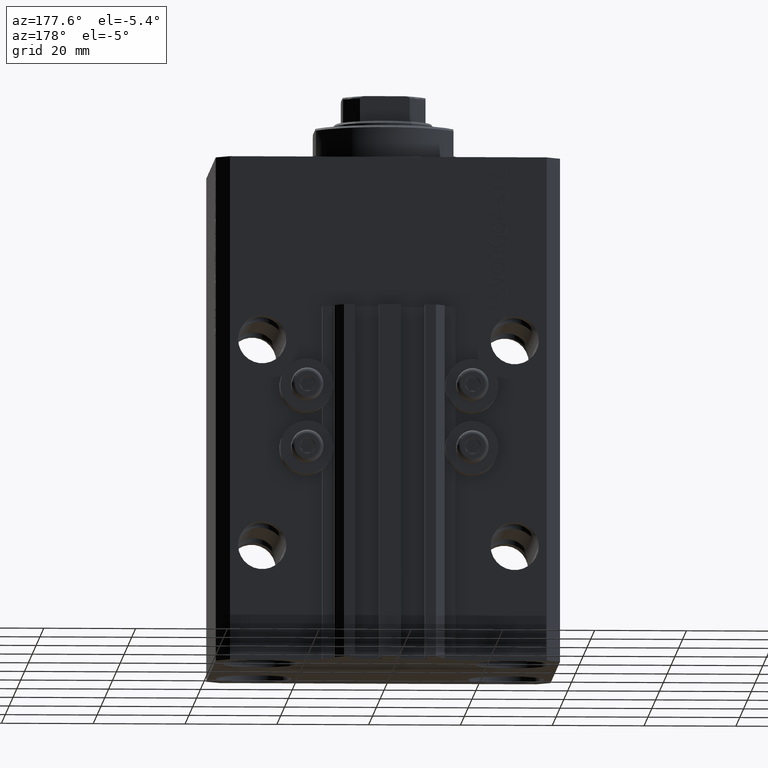
[diagram: clean part render]
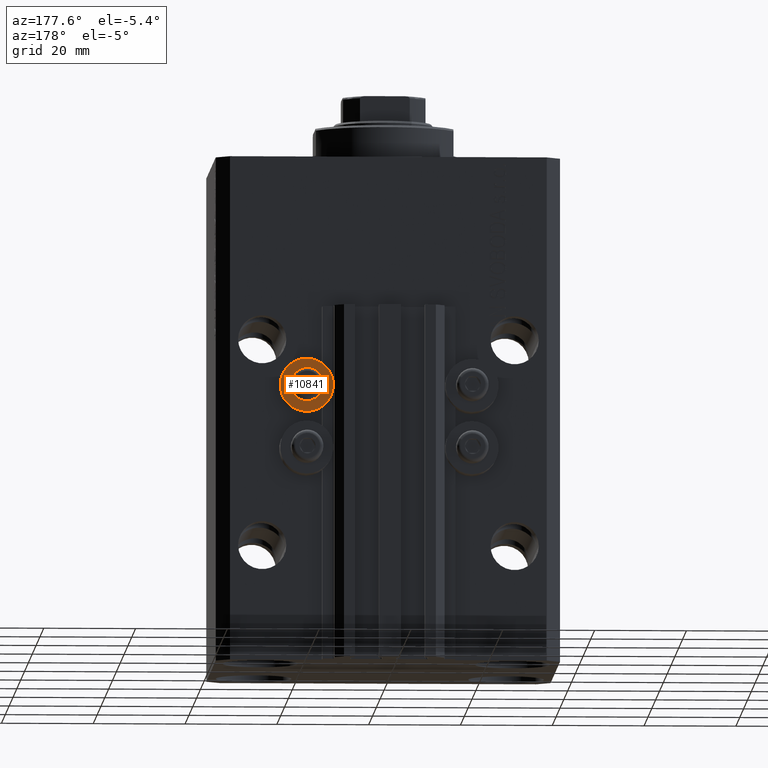
[diagram: same view with one face highlighted and labeled with its STEP entity id]
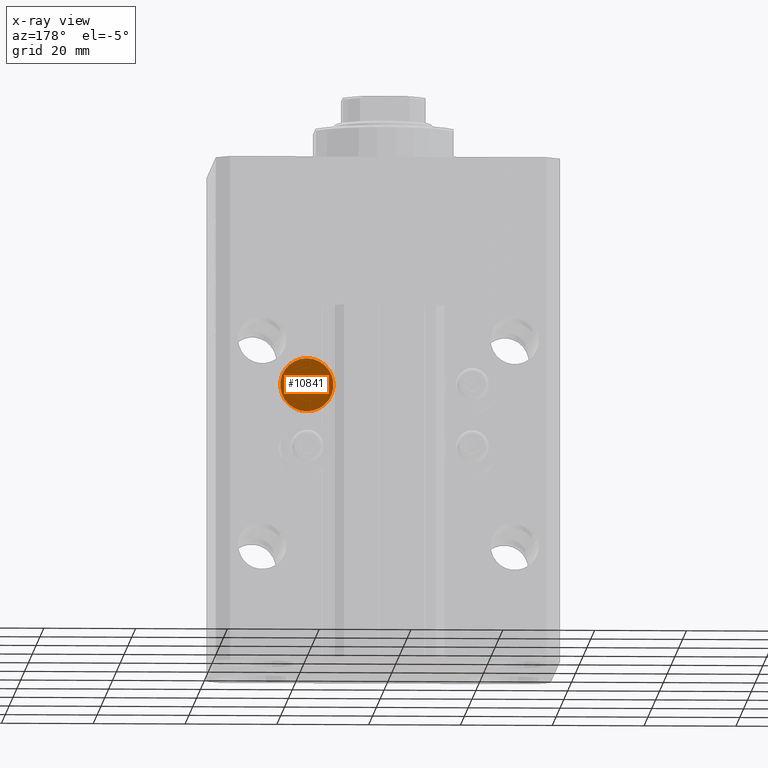
[diagram: x-ray of the same camera — body ghosted, the highlighted face saturated]
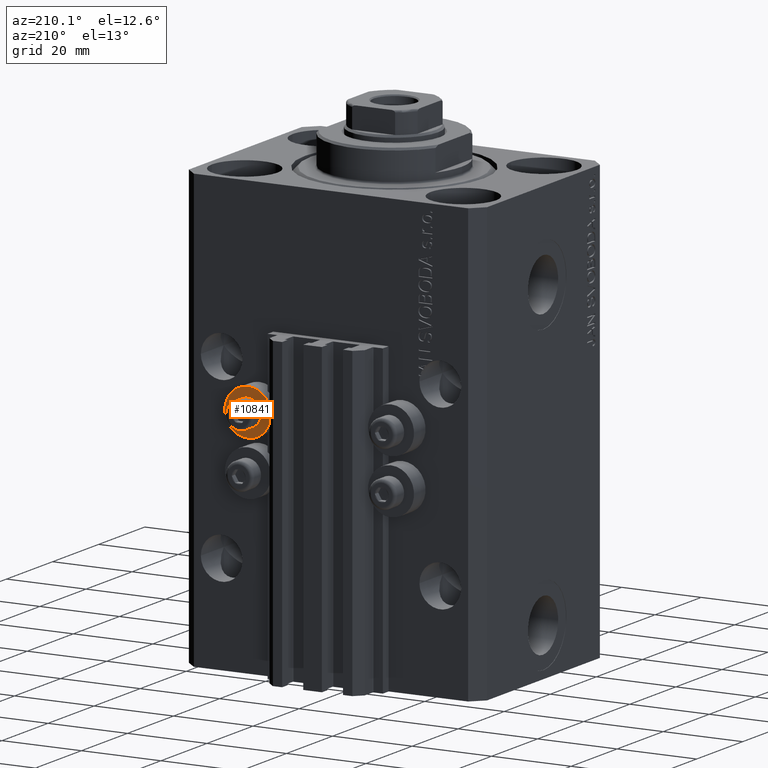
[diagram: same view with one face highlighted and labeled with its STEP entity id]
A machine part, auxiliary view. The second image highlights one B-rep face of the part: STEP entity #10841.
The next image is the same camera in x-ray: the body ghosted, the highlighted face saturated — about 0% of this face is hidden behind the body in this view.
A second angle (auxiliary view) of the same face is appended — the face is thin or edge-on in the first view.
In plain terms, the highlighted planar face has unit normal (0, -1, 0).
Its self-contained STEP definition (entity closure, byte-faithful):
#967 = DIRECTION ( 'NONE',  ( 0.000000000000000000, -1.000000000000000000, -0.000000000000000000 ) ) ;
#3479 = ORIENTED_EDGE ( 'NONE', *, *, #5420, .T. ) ;
#5420 = EDGE_CURVE ( 'NONE', #10479, #45774, #32361, .T. ) ;
#5591 = CARTESIAN_POINT ( 'NONE',  ( 18.00000000000000355, 32.49999999996100541, -48.39999999999999858 ) ) ;
#6972 = DIRECTION ( 'NONE',  ( 0.000000000000000000, 0.000000000000000000, 1.000000000000000000 ) ) ;
#7481 = EDGE_LOOP ( 'NONE', ( #23985, #3479 ) ) ;
#10479 = VERTEX_POINT ( 'NONE', #35836 ) ;
#10841 = ADVANCED_FACE ( 'NONE', ( #15133, #37837 ), #34004, .F. ) ;
#11622 = CIRCLE ( 'NONE', #42962, 5.799999999999999822 ) ;
#12573 = AXIS2_PLACEMENT_3D ( 'NONE', #22787, #967, #29958 ) ;
#12751 = CIRCLE ( 'NONE', #36474, 2.000000000000001776 ) ;
#12764 = ORIENTED_EDGE ( 'NONE', *, *, #32076, .F. ) ;
#13174 = DIRECTION ( 'NONE',  ( -0.000000000000000000, -1.000000000000000000, -0.000000000000000000 ) ) ;
#15133 = FACE_BOUND ( 'NONE', #7481, .T. ) ;
#15224 = VERTEX_POINT ( 'NONE', #22721 ) ;
#16354 = CARTESIAN_POINT ( 'NONE',  ( 18.00000000000000355, 32.49999999996100541, -50.39999999999999858 ) ) ;
#18699 = DIRECTION ( 'NONE',  ( 0.000000000000000000, 0.000000000000000000, 1.000000000000000000 ) ) ;
#20303 = VERTEX_POINT ( 'NONE', #21570 ) ;
#20597 = DIRECTION ( 'NONE',  ( 0.000000000000000000, 0.000000000000000000, 1.000000000000000000 ) ) ;
#21570 = CARTESIAN_POINT ( 'NONE',  ( 18.00000000000000355, 32.49999999996100541, -44.60000000000000142 ) ) ;
#22721 = CARTESIAN_POINT ( 'NONE',  ( 18.00000000000000355, 32.49999999996100541, -56.20000000000000284 ) ) ;
#22787 = CARTESIAN_POINT ( 'NONE',  ( 12.20000000000000284, 32.49999999996100541, -50.39999999999999858 ) ) ;
#23985 = ORIENTED_EDGE ( 'NONE', *, *, #43671, .T. ) ;
#24253 = DIRECTION ( 'NONE',  ( -0.000000000000000000, -1.000000000000000000, -0.000000000000000000 ) ) ;
#26630 = EDGE_CURVE ( 'NONE', #15224, #20303, #29813, .T. ) ;
#28488 = CARTESIAN_POINT ( 'NONE',  ( 18.00000000000000355, 32.49999999996100541, -50.39999999999999858 ) ) ;
#29248 = DIRECTION ( 'NONE',  ( -0.000000000000000000, -1.000000000000000000, -0.000000000000000000 ) ) ;
#29813 = CIRCLE ( 'NONE', #32090, 5.799999999999999822 ) ;
#29958 = DIRECTION ( 'NONE',  ( -0.000000000000000000, 0.000000000000000000, -1.000000000000000000 ) ) ;
#31433 = EDGE_LOOP ( 'NONE', ( #12764, #31554 ) ) ;
#31554 = ORIENTED_EDGE ( 'NONE', *, *, #26630, .F. ) ;
#32076 = EDGE_CURVE ( 'NONE', #20303, #15224, #11622, .T. ) ;
#32090 = AXIS2_PLACEMENT_3D ( 'NONE', #39999, #29248, #6972 ) ;
#32361 = CIRCLE ( 'NONE', #37623, 2.000000000000001776 ) ;
#34004 = PLANE ( 'NONE',  #12573 ) ;
#35836 = CARTESIAN_POINT ( 'NONE',  ( 18.00000000000000355, 32.49999999996100541, -52.40000000000000568 ) ) ;
#36405 = CARTESIAN_POINT ( 'NONE',  ( 18.00000000000000355, 32.49999999996100541, -50.39999999999999858 ) ) ;
#36474 = AXIS2_PLACEMENT_3D ( 'NONE', #16354, #24253, #38839 ) ;
#37623 = AXIS2_PLACEMENT_3D ( 'NONE', #36405, #44056, #18699 ) ;
#37837 = FACE_OUTER_BOUND ( 'NONE', #31433, .T. ) ;
#38839 = DIRECTION ( 'NONE',  ( 0.000000000000000000, 0.000000000000000000, 1.000000000000000000 ) ) ;
#39999 = CARTESIAN_POINT ( 'NONE',  ( 18.00000000000000355, 32.49999999996100541, -50.39999999999999858 ) ) ;
#42962 = AXIS2_PLACEMENT_3D ( 'NONE', #28488, #13174, #20597 ) ;
#43671 = EDGE_CURVE ( 'NONE', #45774, #10479, #12751, .T. ) ;
#44056 = DIRECTION ( 'NONE',  ( -0.000000000000000000, -1.000000000000000000, -0.000000000000000000 ) ) ;
#45774 = VERTEX_POINT ( 'NONE', #5591 ) ;